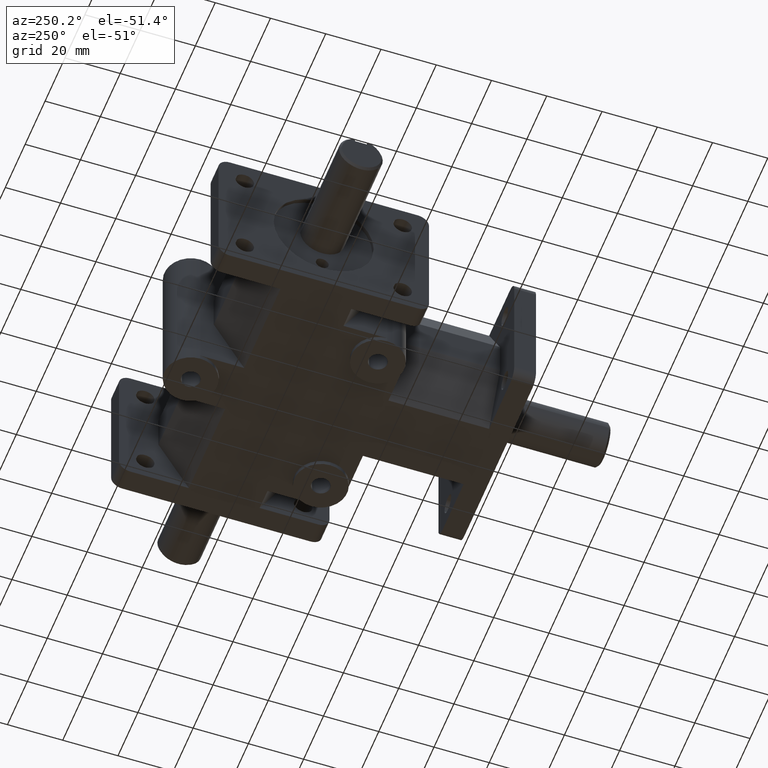
[diagram: clean part render]
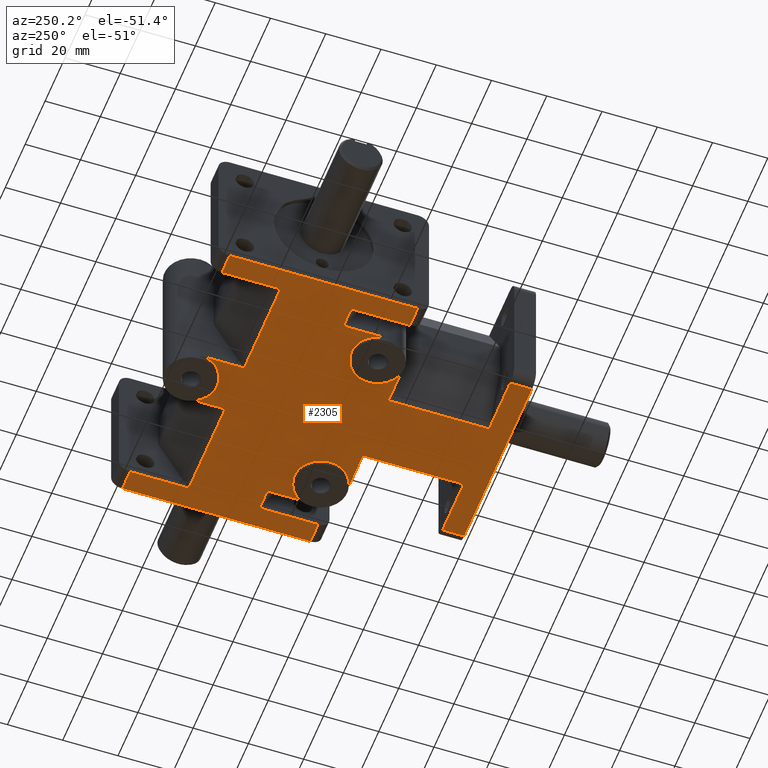
[diagram: same view with one face highlighted and labeled with its STEP entity id]
A machine part, auxiliary view. The second image highlights one B-rep face of the part: STEP entity #2305.
In plain terms, the highlighted planar face has unit normal (0, 0, 1).
Its self-contained STEP definition (entity closure, byte-faithful):
#84=PLANE('',#2510);
#186=FACE_OUTER_BOUND('',#337,.T.);
#337=EDGE_LOOP('',(#1746,#1747,#1748,#1749,#1750,#1751,#1752,#1753,#1754,
#1755,#1756,#1757,#1758,#1759,#1760,#1761,#1762,#1763,#1764,#1765,#1766,
#1767,#1768,#1769,#1770,#1771,#1772,#1773,#1774,#1775,#1776));
#464=LINE('',#3428,#686);
#465=LINE('',#3434,#687);
#472=LINE('',#3464,#694);
#473=LINE('',#3470,#695);
#478=LINE('',#3491,#700);
#483=LINE('',#3515,#705);
#489=LINE('',#3528,#711);
#491=LINE('',#3536,#713);
#501=LINE('',#3558,#723);
#503=LINE('',#3566,#725);
#528=LINE('',#3623,#750);
#531=LINE('',#3636,#753);
#532=LINE('',#3638,#754);
#533=LINE('',#3642,#755);
#534=LINE('',#3644,#756);
#535=LINE('',#3645,#757);
#536=LINE('',#3647,#758);
#537=LINE('',#3649,#759);
#538=LINE('',#3651,#760);
#539=LINE('',#3655,#761);
#540=LINE('',#3656,#762);
#541=LINE('',#3657,#763);
#542=LINE('',#3659,#764);
#543=LINE('',#3661,#765);
#544=LINE('',#3667,#766);
#545=LINE('',#3668,#767);
#546=LINE('',#3669,#768);
#686=VECTOR('',#2751,1.);
#687=VECTOR('',#2756,1.);
#694=VECTOR('',#2783,1.);
#695=VECTOR('',#2788,1.);
#700=VECTOR('',#2807,1.);
#705=VECTOR('',#2828,1.);
#711=VECTOR('',#2838,1.);
#713=VECTOR('',#2846,1.);
#723=VECTOR('',#2862,1.);
#725=VECTOR('',#2870,1.);
#750=VECTOR('',#2913,1.);
#753=VECTOR('',#2926,1.);
#754=VECTOR('',#2927,1.);
#755=VECTOR('',#2930,1.);
#756=VECTOR('',#2931,1.);
#757=VECTOR('',#2932,1.);
#758=VECTOR('',#2933,1.);
#759=VECTOR('',#2934,1.);
#760=VECTOR('',#2935,1.);
#761=VECTOR('',#2938,1.);
#762=VECTOR('',#2939,1.);
#763=VECTOR('',#2940,1.);
#764=VECTOR('',#2941,1.);
#765=VECTOR('',#2942,1.);
#766=VECTOR('',#2947,1.);
#767=VECTOR('',#2948,1.);
#768=VECTOR('',#2949,1.);
#958=CIRCLE('',#2511,0.375);
#959=CIRCLE('',#2512,0.375);
#960=CIRCLE('',#2513,0.375);
#961=CIRCLE('',#2514,0.375);
#1027=VERTEX_POINT('',#3421);
#1030=VERTEX_POINT('',#3426);
#1032=VERTEX_POINT('',#3431);
#1033=VERTEX_POINT('',#3433);
#1043=VERTEX_POINT('',#3457);
#1046=VERTEX_POINT('',#3462);
#1048=VERTEX_POINT('',#3467);
#1049=VERTEX_POINT('',#3469);
#1055=VERTEX_POINT('',#3484);
#1058=VERTEX_POINT('',#3489);
#1068=VERTEX_POINT('',#3512);
#1069=VERTEX_POINT('',#3514);
#1074=VERTEX_POINT('',#3526);
#1077=VERTEX_POINT('',#3535);
#1086=VERTEX_POINT('',#3556);
#1089=VERTEX_POINT('',#3565);
#1117=VERTEX_POINT('',#3635);
#1118=VERTEX_POINT('',#3637);
#1119=VERTEX_POINT('',#3639);
#1120=VERTEX_POINT('',#3641);
#1121=VERTEX_POINT('',#3643);
#1122=VERTEX_POINT('',#3646);
#1123=VERTEX_POINT('',#3648);
#1124=VERTEX_POINT('',#3650);
#1125=VERTEX_POINT('',#3652);
#1126=VERTEX_POINT('',#3654);
#1127=VERTEX_POINT('',#3658);
#1128=VERTEX_POINT('',#3660);
#1129=VERTEX_POINT('',#3662);
#1130=VERTEX_POINT('',#3664);
#1131=VERTEX_POINT('',#3666);
#1260=EDGE_CURVE('',#1030,#1027,#464,.T.);
#1262=EDGE_CURVE('',#1032,#1033,#465,.T.);
#1276=EDGE_CURVE('',#1046,#1043,#472,.T.);
#1278=EDGE_CURVE('',#1048,#1049,#473,.T.);
#1288=EDGE_CURVE('',#1058,#1055,#478,.T.);
#1298=EDGE_CURVE('',#1068,#1069,#483,.T.);
#1305=EDGE_CURVE('',#1074,#1030,#489,.T.);
#1309=EDGE_CURVE('',#1033,#1077,#491,.T.);
#1321=EDGE_CURVE('',#1086,#1046,#501,.T.);
#1325=EDGE_CURVE('',#1049,#1089,#503,.T.);
#1357=EDGE_CURVE('',#1055,#1068,#528,.T.);
#1364=EDGE_CURVE('',#1117,#1074,#531,.T.);
#1365=EDGE_CURVE('',#1118,#1117,#532,.T.);
#1366=EDGE_CURVE('',#1118,#1119,#958,.T.);
#1367=EDGE_CURVE('',#1120,#1119,#533,.T.);
#1368=EDGE_CURVE('',#1121,#1120,#534,.T.);
#1369=EDGE_CURVE('',#1069,#1121,#535,.T.);
#1370=EDGE_CURVE('',#1122,#1058,#536,.T.);
#1371=EDGE_CURVE('',#1123,#1122,#537,.T.);
#1372=EDGE_CURVE('',#1124,#1123,#538,.T.);
#1373=EDGE_CURVE('',#1124,#1125,#959,.T.);
#1374=EDGE_CURVE('',#1126,#1125,#539,.T.);
#1375=EDGE_CURVE('',#1089,#1126,#540,.T.);
#1376=EDGE_CURVE('',#1043,#1048,#541,.T.);
#1377=EDGE_CURVE('',#1127,#1086,#542,.T.);
#1378=EDGE_CURVE('',#1128,#1127,#543,.T.);
#1379=EDGE_CURVE('',#1128,#1129,#960,.T.);
#1380=EDGE_CURVE('',#1129,#1130,#961,.T.);
#1381=EDGE_CURVE('',#1131,#1130,#544,.T.);
#1382=EDGE_CURVE('',#1077,#1131,#545,.T.);
#1383=EDGE_CURVE('',#1027,#1032,#546,.T.);
#1746=ORIENTED_EDGE('',*,*,#1260,.F.);
#1747=ORIENTED_EDGE('',*,*,#1305,.F.);
#1748=ORIENTED_EDGE('',*,*,#1364,.F.);
#1749=ORIENTED_EDGE('',*,*,#1365,.F.);
#1750=ORIENTED_EDGE('',*,*,#1366,.T.);
#1751=ORIENTED_EDGE('',*,*,#1367,.F.);
#1752=ORIENTED_EDGE('',*,*,#1368,.F.);
#1753=ORIENTED_EDGE('',*,*,#1369,.F.);
#1754=ORIENTED_EDGE('',*,*,#1298,.F.);
#1755=ORIENTED_EDGE('',*,*,#1357,.F.);
#1756=ORIENTED_EDGE('',*,*,#1288,.F.);
#1757=ORIENTED_EDGE('',*,*,#1370,.F.);
#1758=ORIENTED_EDGE('',*,*,#1371,.F.);
#1759=ORIENTED_EDGE('',*,*,#1372,.F.);
#1760=ORIENTED_EDGE('',*,*,#1373,.T.);
#1761=ORIENTED_EDGE('',*,*,#1374,.F.);
#1762=ORIENTED_EDGE('',*,*,#1375,.F.);
#1763=ORIENTED_EDGE('',*,*,#1325,.F.);
#1764=ORIENTED_EDGE('',*,*,#1278,.F.);
#1765=ORIENTED_EDGE('',*,*,#1376,.F.);
#1766=ORIENTED_EDGE('',*,*,#1276,.F.);
#1767=ORIENTED_EDGE('',*,*,#1321,.F.);
#1768=ORIENTED_EDGE('',*,*,#1377,.F.);
#1769=ORIENTED_EDGE('',*,*,#1378,.F.);
#1770=ORIENTED_EDGE('',*,*,#1379,.T.);
#1771=ORIENTED_EDGE('',*,*,#1380,.T.);
#1772=ORIENTED_EDGE('',*,*,#1381,.F.);
#1773=ORIENTED_EDGE('',*,*,#1382,.F.);
#1774=ORIENTED_EDGE('',*,*,#1309,.F.);
#1775=ORIENTED_EDGE('',*,*,#1262,.F.);
#1776=ORIENTED_EDGE('',*,*,#1383,.F.);
#2305=ADVANCED_FACE('',(#186),#84,.F.);
#2510=AXIS2_PLACEMENT_3D('',#3634,#2924,#2925);
#2511=AXIS2_PLACEMENT_3D('',#3640,#2928,#2929);
#2512=AXIS2_PLACEMENT_3D('',#3653,#2936,#2937);
#2513=AXIS2_PLACEMENT_3D('',#3663,#2943,#2944);
#2514=AXIS2_PLACEMENT_3D('',#3665,#2945,#2946);
#2751=DIRECTION('',(0.,-1.,0.));
#2756=DIRECTION('',(0.,1.,0.));
#2783=DIRECTION('',(1.,0.,0.));
#2788=DIRECTION('',(-1.,0.,0.));
#2807=DIRECTION('',(-1.,0.,0.));
#2828=DIRECTION('',(1.,0.,0.));
#2838=DIRECTION('',(-1.,0.,0.));
#2846=DIRECTION('',(-1.,0.,0.));
#2862=DIRECTION('',(0.,-1.,0.));
#2870=DIRECTION('',(0.,-1.,0.));
#2913=DIRECTION('',(0.,-1.,0.));
#2924=DIRECTION('center_axis',(0.,0.,1.));
#2925=DIRECTION('ref_axis',(-1.,0.,0.));
#2926=DIRECTION('',(0.,-1.,0.));
#2927=DIRECTION('',(1.,0.,0.));
#2928=DIRECTION('center_axis',(0.,0.,1.));
#2929=DIRECTION('ref_axis',(1.,0.,0.));
#2930=DIRECTION('',(0.,-1.,0.));
#2931=DIRECTION('',(1.,0.,0.));
#2932=DIRECTION('',(0.,1.,0.));
#2933=DIRECTION('',(0.,1.,0.));
#2934=DIRECTION('',(-1.,0.,0.));
#2935=DIRECTION('',(0.,-1.,0.));
#2936=DIRECTION('center_axis',(0.,0.,1.));
#2937=DIRECTION('ref_axis',(1.,0.,0.));
#2938=DIRECTION('',(0.,1.,0.));
#2939=DIRECTION('',(-1.,0.,0.));
#2940=DIRECTION('',(0.,1.,0.));
#2941=DIRECTION('',(1.,0.,0.));
#2942=DIRECTION('',(0.,1.,0.));
#2943=DIRECTION('center_axis',(0.,0.,1.));
#2944=DIRECTION('ref_axis',(1.,0.,0.));
#2945=DIRECTION('center_axis',(0.,0.,1.));
#2946=DIRECTION('ref_axis',(1.,0.,0.));
#2947=DIRECTION('',(1.,0.,0.));
#2948=DIRECTION('',(0.,1.,0.));
#2949=DIRECTION('',(1.,0.,0.));
#3421=CARTESIAN_POINT('',(-1.34,0.,-1.));
#3426=CARTESIAN_POINT('',(-1.34,0.31,-1.));
#3428=CARTESIAN_POINT('',(-1.34,1.36871389024368,-1.));
#3431=CARTESIAN_POINT('',(1.34,0.,-1.));
#3433=CARTESIAN_POINT('',(1.34,0.31,-1.));
#3434=CARTESIAN_POINT('',(1.34,1.21371389024368,-1.));
#3457=CARTESIAN_POINT('',(2.125,1.91,-1.));
#3462=CARTESIAN_POINT('',(1.815,1.91,-1.));
#3464=CARTESIAN_POINT('',(0.9075,1.91,-1.));
#3467=CARTESIAN_POINT('',(2.125,4.59,-1.));
#3469=CARTESIAN_POINT('',(1.815,4.59,-1.));
#3470=CARTESIAN_POINT('',(1.0625,4.59,-1.));
#3484=CARTESIAN_POINT('',(-2.125,4.59,-1.));
#3489=CARTESIAN_POINT('',(-1.815,4.59,-1.));
#3491=CARTESIAN_POINT('',(-0.9075,4.59,-1.));
#3512=CARTESIAN_POINT('',(-2.125,1.91,-1.));
#3514=CARTESIAN_POINT('',(-1.815,1.91,-1.));
#3515=CARTESIAN_POINT('',(-1.0625,1.91,-1.));
#3526=CARTESIAN_POINT('',(-0.504487,0.31,-1.));
#3528=CARTESIAN_POINT('',(-1.5,0.31,-1.));
#3535=CARTESIAN_POINT('',(0.504487,0.31,-1.));
#3536=CARTESIAN_POINT('',(0.75,0.31,-1.));
#3556=CARTESIAN_POINT('',(1.815,2.745513,-1.));
#3558=CARTESIAN_POINT('',(1.815,1.75,-1.));
#3565=CARTESIAN_POINT('',(1.815,3.754487,-1.));
#3566=CARTESIAN_POINT('',(1.815,3.58871389024368,-1.));
#3623=CARTESIAN_POINT('',(-2.125,1.75,-1.));
#3634=CARTESIAN_POINT('Origin',(2.42861286636753E-17,2.42742778048737,-1.));
#3635=CARTESIAN_POINT('',(-0.504487,1.745,-1.));
#3636=CARTESIAN_POINT('',(-0.504487,2.08621389024368,-1.));
#3637=CARTESIAN_POINT('',(-1.13,1.745,-1.));
#3638=CARTESIAN_POINT('',(-0.565000000000001,1.745,-1.));
#3639=CARTESIAN_POINT('',(-1.505,2.12,-1.));
#3640=CARTESIAN_POINT('Origin',(-1.13,2.12,-1.));
#3641=CARTESIAN_POINT('',(-1.505,2.745513,-1.));
#3642=CARTESIAN_POINT('',(-1.505,2.12,-1.));
#3643=CARTESIAN_POINT('',(-1.815,2.745513,-1.));
#3644=CARTESIAN_POINT('',(-0.9075,2.745513,-1.));
#3645=CARTESIAN_POINT('',(-1.815,2.08871389024368,-1.));
#3646=CARTESIAN_POINT('',(-1.815,3.754487,-1.));
#3647=CARTESIAN_POINT('',(-1.815,4.1875,-1.));
#3648=CARTESIAN_POINT('',(-0.375,3.754487,-1.));
#3649=CARTESIAN_POINT('',(-0.1875,3.754487,-1.));
#3650=CARTESIAN_POINT('',(-0.375,4.38,-1.));
#3651=CARTESIAN_POINT('',(-0.375,3.40371389024368,-1.));
#3652=CARTESIAN_POINT('',(0.375,4.38,-1.));
#3653=CARTESIAN_POINT('Origin',(0.,4.38,-1.));
#3654=CARTESIAN_POINT('',(0.375,3.754487,-1.));
#3655=CARTESIAN_POINT('',(0.375,4.1875,-1.));
#3656=CARTESIAN_POINT('',(0.9075,3.754487,-1.));
#3657=CARTESIAN_POINT('',(2.125,1.75,-1.));
#3658=CARTESIAN_POINT('',(1.505,2.745513,-1.));
#3659=CARTESIAN_POINT('',(0.7525,2.745513,-1.));
#3660=CARTESIAN_POINT('',(1.505,2.12,-1.));
#3661=CARTESIAN_POINT('',(1.505,2.27371389024368,-1.));
#3662=CARTESIAN_POINT('',(0.755,2.12,-1.));
#3663=CARTESIAN_POINT('Origin',(1.13,2.12,-1.));
#3664=CARTESIAN_POINT('',(1.13,1.745,-1.));
#3665=CARTESIAN_POINT('Origin',(1.13,2.12,-1.));
#3666=CARTESIAN_POINT('',(0.504487,1.745,-1.));
#3667=CARTESIAN_POINT('',(1.13,1.745,-1.));
#3668=CARTESIAN_POINT('',(0.504487,1.36871389024368,-1.));
#3669=CARTESIAN_POINT('',(-1.5,0.,-1.));